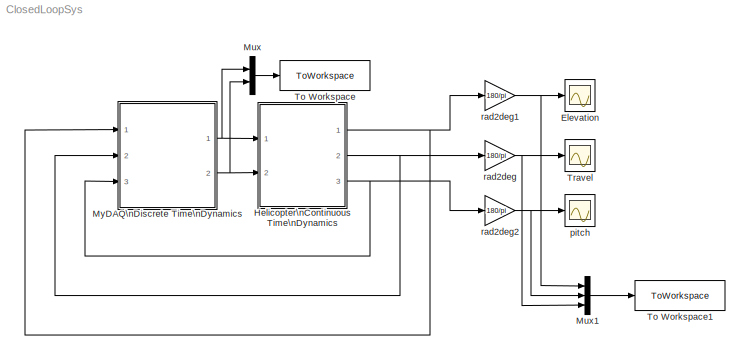
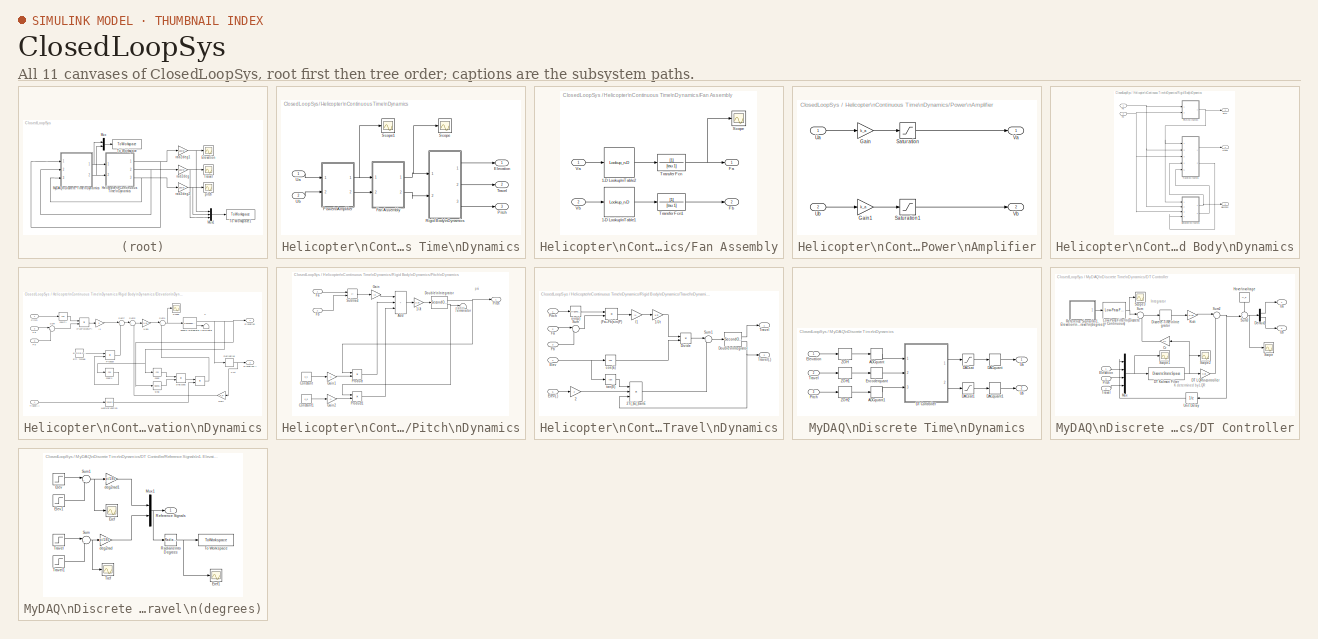
[diagram: thumbnail index - all 11 canvases of the model, root first then tree order]
MODEL ClosedLoopSys
KIND model
BLOCK [Scope] Elevation
  Floating = off
  NumInputPorts = 1
  Ports = [1]
  SID = 796
  ScopeSpecificationString = Simulink.scopes.TimeScopeBlockCfg('CurrentConfiguration', extmgr.ConfigurationSet(extmgr.Configuration('Core','General UI',true),extmgr.Configuration('Core','Source UI',true),extmgr.Configuration('Sources','WiredSimulink',true,'DataLogging',true,'DataLoggingVariableName','elev','DataLoggingSaveFormat','StructureWithTime','DataLoggingDecimation','1','DataLoggingDecimateData',true),extmgr.Configurat...<+1684ch>
BLOCK [SubSystem] Helicopter\nContinuous Time\nDynamics
  Ports = [2, 3]
  RequestExecContextInheritance = off
  SID = 934
BLOCK [Outport] Helicopter\nContinuous Time\nDynamics/Elevation
  NameLocation = top
  SID = 1028
BLOCK [SubSystem] Helicopter\nContinuous Time\nDynamics/Fan Assembly
  Ports = [2, 2]
  RequestExecContextInheritance = off
  SID = 937
BLOCK [Lookup_n-D] Helicopter\nContinuous Time\nDynamics/Fan Assembly/1-D Lookup\nTable1
  BreakpointsForDimension1 = V_ab
  InputPortMap = u0
  InternalRulePriority = Speed
  NumberOfTableDimensions = 1
  Ports = [1, 1]
  RndMeth = Simplest
  SID = 940
  Table = Fss_ab
BLOCK [Lookup_n-D] Helicopter\nContinuous Time\nDynamics/Fan Assembly/1-D Lookup\nTable2
  BreakpointsForDimension1 = V_ab
  InputPortMap = u0
  InternalRulePriority = Speed
  NumberOfTableDimensions = 1
  Ports = [1, 1]
  RndMeth = Simplest
  SID = 941
  Table = Fss_ab
BLOCK [Outport] Helicopter\nContinuous Time\nDynamics/Fan Assembly/Fa
  SID = 944
BLOCK [Outport] Helicopter\nContinuous Time\nDynamics/Fan Assembly/Fb
  Port = 2
  SID = 945
BLOCK [Scope] Helicopter\nContinuous Time\nDynamics/Fan Assembly/Scope
  Floating = off
  NumInputPorts = 1
  Ports = [1]
  SID = 1038
  ScopeSpecificationString = Simulink.scopes.TimeScopeBlockCfg('CurrentConfiguration', extmgr.ConfigurationSet(extmgr.Configuration('Core','General UI',true),extmgr.Configuration('Core','Source UI',true),extmgr.Configuration('Sources','WiredSimulink',true,'DataLoggingVariableName','ScopeData1'),extmgr.Configuration('Visuals','Time Domain',true,'SerializedDisplays',{struct('MinYLimReal','-0.01466','MaxYLimReal','0.13191','YLab...<+1371ch>
BLOCK [TransferFcn] Helicopter\nContinuous Time\nDynamics/Fan Assembly/Transfer Fcn
  Denominator = [tau 1]
  SID = 942
BLOCK [TransferFcn] Helicopter\nContinuous Time\nDynamics/Fan Assembly/Transfer Fcn1
  Denominator = [tau 1]
  SID = 943
BLOCK [Inport] Helicopter\nContinuous Time\nDynamics/Fan Assembly/Va
  SID = 938
BLOCK [Inport] Helicopter\nContinuous Time\nDynamics/Fan Assembly/Vb
  Port = 2
  SID = 939
BLOCK [Outport] Helicopter\nContinuous Time\nDynamics/Pitch
  Port = 3
  SID = 1030
BLOCK [SubSystem] Helicopter\nContinuous Time\nDynamics/Power\nAmplifier
  Ports = [2, 2]
  RequestExecContextInheritance = off
  SID = 946
BLOCK [Gain] Helicopter\nContinuous Time\nDynamics/Power\nAmplifier/Gain
  Gain = k_a
  SID = 949
BLOCK [Gain] Helicopter\nContinuous Time\nDynamics/Power\nAmplifier/Gain1
  Gain = k_a
  SID = 950
BLOCK [Saturate] Helicopter\nContinuous Time\nDynamics/Power\nAmplifier/Saturation
  LowerLimit = amp_sat_l
  SID = 951
  UpperLimit = amp_sat_u
BLOCK [Saturate] Helicopter\nContinuous Time\nDynamics/Power\nAmplifier/Saturation1
  LowerLimit = amp_sat_l
  SID = 952
  UpperLimit = amp_sat_u
BLOCK [Inport] Helicopter\nContinuous Time\nDynamics/Power\nAmplifier/Ua
  SID = 947
BLOCK [Inport] Helicopter\nContinuous Time\nDynamics/Power\nAmplifier/Ub
  Port = 2
  SID = 948
BLOCK [Outport] Helicopter\nContinuous Time\nDynamics/Power\nAmplifier/Va
  SID = 953
BLOCK [Outport] Helicopter\nContinuous Time\nDynamics/Power\nAmplifier/Vb
  Port = 2
  SID = 954
BLOCK [SubSystem] Helicopter\nContinuous Time\nDynamics/Rigid Body\nDynamics
  Ports = [2, 3]
  RequestExecContextInheritance = off
  SID = 955
BLOCK [Outport] Helicopter\nContinuous Time\nDynamics/Rigid Body\nDynamics/Elevation
  NameLocation = top
  SID = 1024
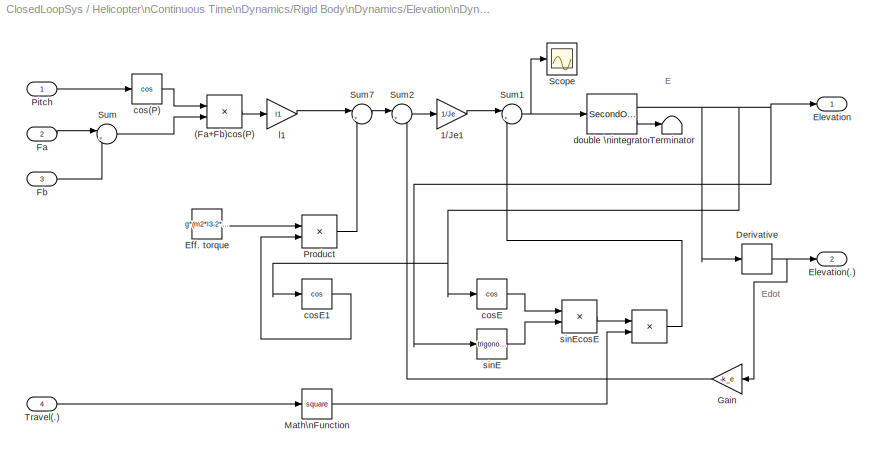
BLOCK [SubSystem] Helicopter\nContinuous Time\nDynamics/Rigid Body\nDynamics/Elevation\nDynamics
  Ports = [4, 2]
  RequestExecContextInheritance = off
  SID = 958
BLOCK [Product] Helicopter\nContinuous Time\nDynamics/Rigid Body\nDynamics/Elevation\nDynamics/ 
  InputSameDT = on
  OutDataTypeStr = Inherit: Same as first input
  Ports = [2, 1]
  RndMeth = Zero
  SID = 963
  SaturateOnIntegerOverflow = on
BLOCK [Product] Helicopter\nContinuous Time\nDynamics/Rigid Body\nDynamics/Elevation\nDynamics/(Fa+Fb)cos(P)
  InputSameDT = on
  OutDataTypeStr = Inherit: Same as first input
  Ports = [2, 1]
  RndMeth = Zero
  SID = 964
  SaturateOnIntegerOverflow = on
BLOCK [Gain] Helicopter\nContinuous Time\nDynamics/Rigid Body\nDynamics/Elevation\nDynamics/1//Je1
  Gain = 1/Je
  OutDataTypeStr = Inherit: Same as input
  ParamDataTypeStr = Inherit: Same as input
  SID = 965
  SaturateOnIntegerOverflow = on
BLOCK [Derivative] Helicopter\nContinuous Time\nDynamics/Rigid Body\nDynamics/Elevation\nDynamics/Derivative
  SID = 966
BLOCK [Constant] Helicopter\nContinuous Time\nDynamics/Rigid Body\nDynamics/Elevation\nDynamics/Eff. torque
  SID = 967
  SampleTime = 0
  Value = g*(m2*l3-2*m1*l1)
BLOCK [Outport] Helicopter\nContinuous Time\nDynamics/Rigid Body\nDynamics/Elevation\nDynamics/Elevation
  SID = 982
BLOCK [Outport] Helicopter\nContinuous Time\nDynamics/Rigid Body\nDynamics/Elevation\nDynamics/Elevation(.)
  Port = 2
  SID = 983
BLOCK [Inport] Helicopter\nContinuous Time\nDynamics/Rigid Body\nDynamics/Elevation\nDynamics/Fa
  Port = 2
  SID = 960
BLOCK [Inport] Helicopter\nContinuous Time\nDynamics/Rigid Body\nDynamics/Elevation\nDynamics/Fb
  Port = 3
  SID = 961
BLOCK [Gain] Helicopter\nContinuous Time\nDynamics/Rigid Body\nDynamics/Elevation\nDynamics/Gain
  Gain = -k_e
  NameLocation = top
  SID = 1046
BLOCK [Math] Helicopter\nContinuous Time\nDynamics/Rigid Body\nDynamics/Elevation\nDynamics/Math\nFunction
  Operator = square
  Ports = [1, 1]
  SID = 968
  SignedPower = on
BLOCK [Inport] Helicopter\nContinuous Time\nDynamics/Rigid Body\nDynamics/Elevation\nDynamics/Pitch
  SID = 959
BLOCK [Product] Helicopter\nContinuous Time\nDynamics/Rigid Body\nDynamics/Elevation\nDynamics/Product
  InputSameDT = on
  OutDataTypeStr = Inherit: Same as first input
  Ports = [2, 1]
  RndMeth = Zero
  SID = 969
  SaturateOnIntegerOverflow = on
BLOCK [Scope] Helicopter\nContinuous Time\nDynamics/Rigid Body\nDynamics/Elevation\nDynamics/Scope
  Floating = off
  NumInputPorts = 1
  Ports = [1]
  SID = 970
  ScopeSpecificationString = Simulink.scopes.TimeScopeBlockCfg('CurrentConfiguration', extmgr.ConfigurationSet(extmgr.Configuration('Core','General UI',true),extmgr.Configuration('Core','Source UI',true),extmgr.Configuration('Sources','WiredSimulink',true,'DataLoggingVariableName','ScopeData2'),extmgr.Configuration('Visuals','Time Domain',true,'SerializedDisplays',{struct('MinYLimReal','-0.8852','MaxYLimReal','-0.21737','YLab...<+1390ch>
BLOCK [Sum] Helicopter\nContinuous Time\nDynamics/Rigid Body\nDynamics/Elevation\nDynamics/Sum
  InputSameDT = on
  Inputs = |++
  OutDataTypeStr = Inherit: Same as first input
  Ports = [2, 1]
  SID = 971
  SaturateOnIntegerOverflow = on
BLOCK [Sum] Helicopter\nContinuous Time\nDynamics/Rigid Body\nDynamics/Elevation\nDynamics/Sum1
  InputSameDT = on
  Inputs = |+-
  OutDataTypeStr = Inherit: Same as first input
  Ports = [2, 1]
  SID = 972
  SaturateOnIntegerOverflow = on
BLOCK [Sum] Helicopter\nContinuous Time\nDynamics/Rigid Body\nDynamics/Elevation\nDynamics/Sum2
  InputSameDT = on
  Inputs = |++
  OutDataTypeStr = Inherit: Same as first input
  Ports = [2, 1]
  SID = 1047
  SaturateOnIntegerOverflow = on
BLOCK [Sum] Helicopter\nContinuous Time\nDynamics/Rigid Body\nDynamics/Elevation\nDynamics/Sum7
  InputSameDT = on
  Inputs = |++
  OutDataTypeStr = Inherit: Same as first input
  Ports = [2, 1]
  SID = 973
  SaturateOnIntegerOverflow = on
BLOCK [Terminator] Helicopter\nContinuous Time\nDynamics/Rigid Body\nDynamics/Elevation\nDynamics/Terminator
  SID = 974
BLOCK [Inport] Helicopter\nContinuous Time\nDynamics/Rigid Body\nDynamics/Elevation\nDynamics/Travel(.)
  Port = 4
  SID = 962
BLOCK [Trigonometry] Helicopter\nContinuous Time\nDynamics/Rigid Body\nDynamics/Elevation\nDynamics/cos(P)
  Operator = cos
  Ports = [1, 1]
  SID = 975
BLOCK [Trigonometry] Helicopter\nContinuous Time\nDynamics/Rigid Body\nDynamics/Elevation\nDynamics/cosE
  Operator = cos
  Ports = [1, 1]
  SID = 976
BLOCK [Trigonometry] Helicopter\nContinuous Time\nDynamics/Rigid Body\nDynamics/Elevation\nDynamics/cosE1
  Operator = cos
  Ports = [1, 1]
  SID = 977
BLOCK [SecondOrderIntegrator] Helicopter\nContinuous Time\nDynamics/Rigid Body\nDynamics/Elevation\nDynamics/double \nintegrator
  ICX = e_lim_l
  LimitDXDT = on
  LimitX = on
  LowerLimitDXDT = -2*pi
  LowerLimitX = e_lim_l
  Ports = [1, 2]
  SID = 978
  UpperLimitDXDT = 2*pi
  UpperLimitX = e_lim_u
BLOCK [Gain] Helicopter\nContinuous Time\nDynamics/Rigid Body\nDynamics/Elevation\nDynamics/l1
  Gain = l1
  OutDataTypeStr = Inherit: Same as input
  ParamDataTypeStr = Inherit: Same as input
  SID = 979
  SaturateOnIntegerOverflow = on
BLOCK [Trigonometry] Helicopter\nContinuous Time\nDynamics/Rigid Body\nDynamics/Elevation\nDynamics/sinE
  Ports = [1, 1]
  SID = 980
BLOCK [Product] Helicopter\nContinuous Time\nDynamics/Rigid Body\nDynamics/Elevation\nDynamics/sinEcosE
  InputSameDT = on
  OutDataTypeStr = Inherit: Same as first input
  Ports = [2, 1]
  RndMeth = Zero
  SID = 981
  SaturateOnIntegerOverflow = on
BLOCK [Inport] Helicopter\nContinuous Time\nDynamics/Rigid Body\nDynamics/Fa
  SID = 956
BLOCK [Inport] Helicopter\nContinuous Time\nDynamics/Rigid Body\nDynamics/Fb
  Port = 2
  SID = 957
BLOCK [Outport] Helicopter\nContinuous Time\nDynamics/Rigid Body\nDynamics/Pitch
  Port = 3
  SID = 1026
BLOCK [SubSystem] Helicopter\nContinuous Time\nDynamics/Rigid Body\nDynamics/Pitch\nDynamics
  Ports = [2, 1]
  RequestExecContextInheritance = off
  SID = 986
BLOCK [Gain] Helicopter\nContinuous Time\nDynamics/Rigid Body\nDynamics/Pitch\nDynamics/1//Jt
  Gain = 1/Jp
  OutDataTypeStr = Inherit: Same as input
  ParamDataTypeStr = Inherit: Same as input
  SID = 989
  SaturateOnIntegerOverflow = on
BLOCK [Sum] Helicopter\nContinuous Time\nDynamics/Rigid Body\nDynamics/Pitch\nDynamics/Add
  IconShape = rectangular
  Inputs = +++
  Ports = [3, 1]
  SID = 990
BLOCK [Constant] Helicopter\nContinuous Time\nDynamics/Rigid Body\nDynamics/Pitch\nDynamics/Constant
  SID = 991
  SampleTime = 0
  Value = k_s
BLOCK [Constant] Helicopter\nContinuous Time\nDynamics/Rigid Body\nDynamics/Pitch\nDynamics/Constant1
  SID = 992
  SampleTime = 0
  Value = k_d
BLOCK [SecondOrderIntegrator] Helicopter\nContinuous Time\nDynamics/Rigid Body\nDynamics/Pitch\nDynamics/Double\nIntegrator
  ICX = 0
  LimitX = on
  LowerLimitX = p_lim_l
  Ports = [1, 2]
  SID = 993
  UpperLimitX = p_lim_u
BLOCK [Inport] Helicopter\nContinuous Time\nDynamics/Rigid Body\nDynamics/Pitch\nDynamics/Fa
  SID = 987
BLOCK [Inport] Helicopter\nContinuous Time\nDynamics/Rigid Body\nDynamics/Pitch\nDynamics/Fb
  Port = 2
  SID = 988
BLOCK [Gain] Helicopter\nContinuous Time\nDynamics/Rigid Body\nDynamics/Pitch\nDynamics/Gain
  Gain = l2
  SID = 994
BLOCK [Gain] Helicopter\nContinuous Time\nDynamics/Rigid Body\nDynamics/Pitch\nDynamics/Gain1
  Gain = -1
  SID = 995
BLOCK [Gain] Helicopter\nContinuous Time\nDynamics/Rigid Body\nDynamics/Pitch\nDynamics/Gain2
  Gain = -1
  SID = 996
BLOCK [Outport] Helicopter\nContinuous Time\nDynamics/Rigid Body\nDynamics/Pitch\nDynamics/Pitch
  SID = 1001
BLOCK [Product] Helicopter\nContinuous Time\nDynamics/Rigid Body\nDynamics/Pitch\nDynamics/Product
  Ports = [2, 1]
  SID = 997
BLOCK [Product] Helicopter\nContinuous Time\nDynamics/Rigid Body\nDynamics/Pitch\nDynamics/Product1
  Ports = [2, 1]
  SID = 998
BLOCK [Sum] Helicopter\nContinuous Time\nDynamics/Rigid Body\nDynamics/Pitch\nDynamics/Subtract
  IconShape = rectangular
  Inputs = +-
  Ports = [2, 1]
  SID = 999
BLOCK [Terminator] Helicopter\nContinuous Time\nDynamics/Rigid Body\nDynamics/Pitch\nDynamics/Terminator
  SID = 1000
BLOCK [Outport] Helicopter\nContinuous Time\nDynamics/Rigid Body\nDynamics/Travel
  Port = 2
  SID = 1025
BLOCK [SubSystem] Helicopter\nContinuous Time\nDynamics/Rigid Body\nDynamics/Travel\nDynamics
  Ports = [5, 2]
  RequestExecContextInheritance = off
  SID = 1004
BLOCK [Product] Helicopter\nContinuous Time\nDynamics/Rigid Body\nDynamics/Travel\nDynamics/(Fa+Fb)sin(P)
  InputSameDT = on
  OutDataTypeStr = Inherit: Same as first input
  Ports = [2, 1]
  RndMeth = Zero
  SID = 1010
  SaturateOnIntegerOverflow = on
BLOCK [Gain] Helicopter\nContinuous Time\nDynamics/Rigid Body\nDynamics/Travel\nDynamics/1//Jt
  Gain = 1/Jt
  OutDataTypeStr = Inherit: Same as input
  ParamDataTypeStr = Inherit: Same as input
  SID = 1011
  SaturateOnIntegerOverflow = on
BLOCK [Gain] Helicopter\nContinuous Time\nDynamics/Rigid Body\nDynamics/Travel\nDynamics/2
  Gain = 2
  OutDataTypeStr = Inherit: Same as input
  ParamDataTypeStr = Inherit: Same as input
  SID = 1012
  SaturateOnIntegerOverflow = on
BLOCK [Product] Helicopter\nContinuous Time\nDynamics/Rigid Body\nDynamics/Travel\nDynamics/2T(.)E(.)tanE
  InputSameDT = on
  Inputs = 3
  OutDataTypeStr = Inherit: Same as first input
  Ports = [3, 1]
  RndMeth = Zero
  SID = 1013
  SaturateOnIntegerOverflow = on
BLOCK [Product] Helicopter\nContinuous Time\nDynamics/Rigid Body\nDynamics/Travel\nDynamics/Divide
  Inputs = */
  Ports = [2, 1]
  SID = 1014
BLOCK [SecondOrderIntegrator] Helicopter\nContinuous Time\nDynamics/Rigid Body\nDynamics/Travel\nDynamics/Double\nIntegrator
  LimitDXDT = on
  LowerLimitDXDT = -2
  LowerLimitX = 0
  Ports = [1, 2]
  SID = 1015
  UpperLimitDXDT = 2
  UpperLimitX = 1
BLOCK [Inport] Helicopter\nContinuous Time\nDynamics/Rigid Body\nDynamics/Travel\nDynamics/Elev
  Port = 4
  SID = 1008
BLOCK [Inport] Helicopter\nContinuous Time\nDynamics/Rigid Body\nDynamics/Travel\nDynamics/Elev(.)
  Port = 5
  SID = 1009
BLOCK [Inport] Helicopter\nContinuous Time\nDynamics/Rigid Body\nDynamics/Travel\nDynamics/Fa
  Port = 2
  SID = 1006
BLOCK [Inport] Helicopter\nContinuous Time\nDynamics/Rigid Body\nDynamics/Travel\nDynamics/Fb
  Port = 3
  SID = 1007
BLOCK [Inport] Helicopter\nContinuous Time\nDynamics/Rigid Body\nDynamics/Travel\nDynamics/Pitch
  SID = 1005
BLOCK [Sum] Helicopter\nContinuous Time\nDynamics/Rigid Body\nDynamics/Travel\nDynamics/Sum
  InputSameDT = on
  Inputs = |++
  OutDataTypeStr = Inherit: Same as first input
  Ports = [2, 1]
  SID = 1016
  SaturateOnIntegerOverflow = on
BLOCK [Sum] Helicopter\nContinuous Time\nDynamics/Rigid Body\nDynamics/Travel\nDynamics/Sum1
  InputSameDT = on
  Inputs = |-+
  OutDataTypeStr = Inherit: Same as first input
  Ports = [2, 1]
  SID = 1017
  SaturateOnIntegerOverflow = on
BLOCK [Outport] Helicopter\nContinuous Time\nDynamics/Rigid Body\nDynamics/Travel\nDynamics/Travel
  SID = 1022
BLOCK [Outport] Helicopter\nContinuous Time\nDynamics/Rigid Body\nDynamics/Travel\nDynamics/Travel(.)
  Port = 2
  SID = 1023
BLOCK [Trigonometry] Helicopter\nContinuous Time\nDynamics/Rigid Body\nDynamics/Travel\nDynamics/cos(E)
  Operator = cos
  Ports = [1, 1]
  SID = 1018
BLOCK [Gain] Helicopter\nContinuous Time\nDynamics/Rigid Body\nDynamics/Travel\nDynamics/l1
  Gain = l1
  OutDataTypeStr = Inherit: Same as input
  ParamDataTypeStr = Inherit: Same as input
  SID = 1019
  SaturateOnIntegerOverflow = on
BLOCK [Trigonometry] Helicopter\nContinuous Time\nDynamics/Rigid Body\nDynamics/Travel\nDynamics/sin(p)
  Ports = [1, 1]
  SID = 1020
BLOCK [Trigonometry] Helicopter\nContinuous Time\nDynamics/Rigid Body\nDynamics/Travel\nDynamics/tan(E)
  Operator = tan
  Ports = [1, 1]
  SID = 1021
BLOCK [Scope] Helicopter\nContinuous Time\nDynamics/Scope
  Floating = off
  NumInputPorts = 1
  Ports = [1]
  SID = 1027
  ScopeSpecificationString = Simulink.scopes.TimeScopeBlockCfg('CurrentConfiguration', extmgr.ConfigurationSet(extmgr.Configuration('Core','General UI',true),extmgr.Configuration('Core','Source UI',true),extmgr.Configuration('Sources','WiredSimulink',true,'DataLoggingVariableName','ScopeData1'),extmgr.Configuration('Visuals','Time Domain',true,'SerializedDisplays',{struct('MinYLimReal','-0.01801','MaxYLimReal','0.16213','YLab...<+1402ch>
BLOCK [Scope] Helicopter\nContinuous Time\nDynamics/Scope1
  Floating = off
  NumInputPorts = 1
  Ports = [1]
  SID = 1039
  ScopeSpecificationString = Simulink.scopes.TimeScopeBlockCfg('CurrentConfiguration', extmgr.ConfigurationSet(extmgr.Configuration('Core','General UI',true),extmgr.Configuration('Core','Source UI',true),extmgr.Configuration('Sources','WiredSimulink',true,'DataLoggingVariableName','ScopeData2'),extmgr.Configuration('Visuals','Time Domain',true,'SerializedDisplays',{struct('MinYLimReal','-1.25','MaxYLimReal','11.25','YLabelRea...<+1391ch>
BLOCK [Outport] Helicopter\nContinuous Time\nDynamics/Travel
  Port = 2
  SID = 1029
BLOCK [Inport] Helicopter\nContinuous Time\nDynamics/Ua
  SID = 935
BLOCK [Inport] Helicopter\nContinuous Time\nDynamics/Ub
  Port = 2
  SID = 936
BLOCK [Mux] Mux
  DisplayOption = bar
  Inputs = 2
  Ports = [2, 1]
  SID = 1035
BLOCK [Mux] Mux1
  DisplayOption = bar
  Inputs = 3
  Ports = [3, 1]
  SID = 1036
BLOCK [SubSystem] MyDAQ\nDiscrete Time\nDynamics
  Ports = [3, 2]
  RequestExecContextInheritance = off
  SID = 881
BLOCK [Quantizer] MyDAQ\nDiscrete Time\nDynamics/ADCquant
  QuantizationInterval = ADC_Vres
  SID = 885
  SampleTime = T
BLOCK [Quantizer] MyDAQ\nDiscrete Time\nDynamics/ADCquant1
  QuantizationInterval = ADC_Vres
  SID = 886
  SampleTime = T
BLOCK [Quantizer] MyDAQ\nDiscrete Time\nDynamics/DACquant
  QuantizationInterval = DAC_Vres
  SID = 887
  SampleTime = T
BLOCK [Quantizer] MyDAQ\nDiscrete Time\nDynamics/DACquant1
  QuantizationInterval = DAC_Vres
  SID = 888
  SampleTime = T
BLOCK [Saturate] MyDAQ\nDiscrete Time\nDynamics/DACsat
  LowerLimit = DAC_lim_l
  SID = 889
  SampleTime = T
  UpperLimit = DAC_lim_u
BLOCK [Saturate] MyDAQ\nDiscrete Time\nDynamics/DACsat1
  LowerLimit = DAC_lim_l
  SID = 890
  SampleTime = T
  UpperLimit = DAC_lim_u
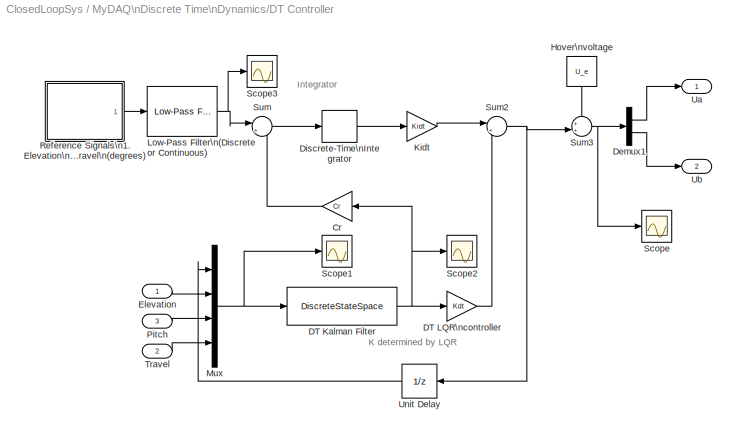
BLOCK [SubSystem] MyDAQ\nDiscrete Time\nDynamics/DT Controller
  Ports = [3, 2]
  RequestExecContextInheritance = off
  SID = 891
BLOCK [Gain] MyDAQ\nDiscrete Time\nDynamics/DT Controller/Cr
  Gain = Cr
  Multiplication = Matrix(K*u)
  SID = 895
BLOCK [DiscreteStateSpace] MyDAQ\nDiscrete Time\nDynamics/DT Controller/DT Kalman Filter
  A = kdfilt.a
  B = kdfilt.b
  C = kdfilt.c(size(C,1)+1:end,:)
  D = kdfilt.d(size(C,1)+1:end,:)
  InitialCondition = [e_lim_l; 0; 0; 0; 0; 0]
  SID = 896
  SampleTime = T
BLOCK [Gain] MyDAQ\nDiscrete Time\nDynamics/DT Controller/DT LQR\ncontroller
  Gain = Kdt
  Multiplication = Matrix(K*u)
  SID = 897
BLOCK [Demux] MyDAQ\nDiscrete Time\nDynamics/DT Controller/Demux1
  Outputs = 2
  Ports = [1, 2]
  SID = 898
BLOCK [DiscreteIntegrator] MyDAQ\nDiscrete Time\nDynamics/DT Controller/Discrete-Time\nIntegrator
  ICPrevOutput = DiscIntNeverNeededParam
  ICPrevScaledInput = DiscIntNeverNeededParam
  Ports = [1, 1]
  SID = 899
  SampleTime = T
BLOCK [Inport] MyDAQ\nDiscrete Time\nDynamics/DT Controller/Elevation
  SID = 892
BLOCK [Constant] MyDAQ\nDiscrete Time\nDynamics/DT Controller/Hover\nvoltage
  NameLocation = left
  SID = 900
  SampleTime = T
  Value = U_e
BLOCK [Gain] MyDAQ\nDiscrete Time\nDynamics/DT Controller/Kidt
  Gain = Kidt
  Multiplication = Matrix(K*u)
  SID = 901
BLOCK [Reference] MyDAQ\nDiscrete Time\nDynamics/DT Controller/Low-Pass Filter\n(Discrete or Continuous)  REF=eeGeneralControl/Low-Pass Filter\n(Discrete or Continuous)
  A = -inf
  B = inf
  K = 1
  Ports = [1, 1]
  RTWMemSecDataConstants = Inherit from model
  RTWMemSecDataInternal = Inherit from model
  RTWMemSecDataParameters = Inherit from model
  RTWMemSecFuncExecute = Inherit from model
  RTWMemSecFuncInitTerm = Inherit from model
  SID = 1049
  SourceBlock = eeGeneralControl/Low-Pass Filter\n(Discrete or Continuous)
  SourceProductBaseCode = PS
  SourceType = Low-Pass Filter (Discrete or Continuous)
  T = 1
  Ts = -1
  init_option = Inherited from block input
  x0 = 0
BLOCK [Mux] MyDAQ\nDiscrete Time\nDynamics/DT Controller/Mux
  DisplayOption = bar
  Ports = [4, 1]
  SID = 902
BLOCK [Inport] MyDAQ\nDiscrete Time\nDynamics/DT Controller/Pitch
  Port = 3
  SID = 894
BLOCK [SubSystem] MyDAQ\nDiscrete Time\nDynamics/DT Controller/Reference Signals\n1. Elevation\n2. Travel\n(degrees)
  Ports = [0, 1]
  RequestExecContextInheritance = off
  SID = 903
BLOCK [Step] MyDAQ\nDiscrete Time\nDynamics/DT Controller/Reference Signals\n1. Elevation\n2. Travel\n(degrees)/Elev
  After = 0
  SID = 904
  SampleTime = T
  Time = 0
BLOCK [Step] MyDAQ\nDiscrete Time\nDynamics/DT Controller/Reference Signals\n1. Elevation\n2. Travel\n(degrees)/Elev1
  After = 10
  SID = 905
  SampleTime = T
  Time = 30
BLOCK [Scope] MyDAQ\nDiscrete Time\nDynamics/DT Controller/Reference Signals\n1. Elevation\n2. Travel\n(degrees)/Eref
  Floating = off
  NumInputPorts = 1
  Ports = [1]
  SID = 906
  ScopeSpecificationString = Simulink.scopes.TimeScopeBlockCfg('CurrentConfiguration', extmgr.ConfigurationSet(extmgr.Configuration('Core','General UI',true),extmgr.Configuration('Core','Source UI',true),extmgr.Configuration('Sources','WiredSimulink',true,'DataLogging',true,'DataLoggingVariableName','eref','DataLoggingSaveFormat','StructureWithTime','DataLoggingDecimation','1','DataLoggingDecimateData',true),extmgr.Configurat...<+1676ch>
BLOCK [Scope] MyDAQ\nDiscrete Time\nDynamics/DT Controller/Reference Signals\n1. Elevation\n2. Travel\n(degrees)/Eref1
  Floating = off
  NumInputPorts = 1
  Ports = [1]
  SID = 1033
  ScopeSpecificationString = Simulink.scopes.TimeScopeBlockCfg('CurrentConfiguration', extmgr.ConfigurationSet(extmgr.Configuration('Core','General UI',true),extmgr.Configuration('Core','Source UI',true),extmgr.Configuration('Sources','WiredSimulink',true,'DataLogging',true,'DataLoggingVariableName','eref1','DataLoggingSaveFormat','StructureWithTime','DataLoggingDecimation','1','DataLoggingDecimateData',true),extmgr.Configura...<+1716ch>
BLOCK [Mux] MyDAQ\nDiscrete Time\nDynamics/DT Controller/Reference Signals\n1. Elevation\n2. Travel\n(degrees)/Mux1
  DisplayOption = bar
  Inputs = 2
  Ports = [2, 1]
  SID = 907
BLOCK [Reference] MyDAQ\nDiscrete Time\nDynamics/DT Controller/Reference Signals\n1. Elevation\n2. Travel\n(degrees)/Radians\nto Degrees  REF=simulink_extras/Transformations/Radians\nto Degrees
  Ports = [1, 1]
  RTWMemSecDataConstants = Inherit from model
  RTWMemSecDataInternal = Inherit from model
  RTWMemSecDataParameters = Inherit from model
  RTWMemSecFuncExecute = Inherit from model
  RTWMemSecFuncInitTerm = Inherit from model
  SID = 1032
  SourceBlock = simulink_extras/Transformations/Radians\nto Degrees
  SourceProductBaseCode = SL
  SourceType = RadiansToDegrees
BLOCK [Outport] MyDAQ\nDiscrete Time\nDynamics/DT Controller/Reference Signals\n1. Elevation\n2. Travel\n(degrees)/Reference Signals
  NameLocation = top
  SID = 915
BLOCK [Sum] MyDAQ\nDiscrete Time\nDynamics/DT Controller/Reference Signals\n1. Elevation\n2. Travel\n(degrees)/Sum
  InputSameDT = on
  Inputs = |++
  OutDataTypeStr = Inherit: Same as first input
  Ports = [2, 1]
  SID = 908
  SaturateOnIntegerOverflow = on
BLOCK [Sum] MyDAQ\nDiscrete Time\nDynamics/DT Controller/Reference Signals\n1. Elevation\n2. Travel\n(degrees)/Sum1
  InputSameDT = on
  Inputs = |++
  OutDataTypeStr = Inherit: Same as first input
  Ports = [2, 1]
  SID = 909
  SampleTime = T
  SaturateOnIntegerOverflow = on
BLOCK [ToWorkspace] MyDAQ\nDiscrete Time\nDynamics/DT Controller/Reference Signals\n1. Elevation\n2. Travel\n(degrees)/To Workspace
  FixptAsFi = on
  MaxDataPoints = inf
  Ports = [1]
  SID = 1031
  SampleTime = -1
  VariableName = refSignals
BLOCK [Step] MyDAQ\nDiscrete Time\nDynamics/DT Controller/Reference Signals\n1. Elevation\n2. Travel\n(degrees)/Travel
  After = 180
  SID = 910
  SampleTime = T
  Time = 10
BLOCK [Step] MyDAQ\nDiscrete Time\nDynamics/DT Controller/Reference Signals\n1. Elevation\n2. Travel\n(degrees)/Travel1
  After = -180
  SID = 911
  SampleTime = T
  Time = 40
BLOCK [Scope] MyDAQ\nDiscrete Time\nDynamics/DT Controller/Reference Signals\n1. Elevation\n2. Travel\n(degrees)/Tref
  Floating = off
  NumInputPorts = 1
  Ports = [1]
  SID = 912
  ScopeSpecificationString = C++SS(StrPVP('Location','[407, 425, 739, 684]'),StrPVP('Open','off'),StrPVP('ZoomMode','xonly'),MxPVP('AxesTitles',54,'struct(''axes1'',''%<SignalLabel>'')'),StrPVP('ShowLegends','off'),StrPVP('TimeRange','60'),StrPVP('YMin','0'),StrPVP('YMax','140'),StrPVP('SaveToWorkspace','on'),StrPVP('SaveName','tref'),StrPVP('DataFormat','StructureWithTime'),StrPVP('LimitDataPoints','off'),StrPVP('BlockParamS...<+106ch>
BLOCK [Gain] MyDAQ\nDiscrete Time\nDynamics/DT Controller/Reference Signals\n1. Elevation\n2. Travel\n(degrees)/deg2rad
  Gain = pi/180
  OutDataTypeStr = Inherit: Same as input
  ParamDataTypeStr = Inherit: Same as input
  SID = 913
  SaturateOnIntegerOverflow = on
BLOCK [Gain] MyDAQ\nDiscrete Time\nDynamics/DT Controller/Reference Signals\n1. Elevation\n2. Travel\n(degrees)/deg2rad1
  Gain = pi/180
  OutDataTypeStr = Inherit: Same as input
  ParamDataTypeStr = Inherit: Same as input
  SID = 914
  SaturateOnIntegerOverflow = on
BLOCK [Scope] MyDAQ\nDiscrete Time\nDynamics/DT Controller/Scope
  Floating = off
  NumInputPorts = 1
  Ports = [1]
  SID = 1040
  ScopeSpecificationString = Simulink.scopes.TimeScopeBlockCfg('CurrentConfiguration', extmgr.ConfigurationSet(extmgr.Configuration('Core','General UI',true),extmgr.Configuration('Core','Source UI',true),extmgr.Configuration('Sources','WiredSimulink',true,'DataLoggingVariableName','ScopeData3'),extmgr.Configuration('Visuals','Time Domain',true,'SerializedDisplays',{struct('MinYLimReal','-13643602662285996746479503409152.00000...<+1620ch>
BLOCK [Scope] MyDAQ\nDiscrete Time\nDynamics/DT Controller/Scope1
  Floating = off
  NumInputPorts = 1
  Ports = [1]
  SID = 1041
  ScopeSpecificationString = Simulink.scopes.TimeScopeBlockCfg('CurrentConfiguration', extmgr.ConfigurationSet(extmgr.Configuration('Core','General UI',true),extmgr.Configuration('Core','Source UI',true),extmgr.Configuration('Sources','WiredSimulink',true,'DataLoggingVariableName','ScopeData4'),extmgr.Configuration('Visuals','Time Domain',true,'SerializedDisplays',{struct('MinYLimReal','-6209047466272959951386020369399808.000...<+1712ch>
BLOCK [Scope] MyDAQ\nDiscrete Time\nDynamics/DT Controller/Scope2
  Floating = off
  NumInputPorts = 1
  Ports = [1]
  SID = 1042
  ScopeSpecificationString = Simulink.scopes.TimeScopeBlockCfg('CurrentConfiguration', extmgr.ConfigurationSet(extmgr.Configuration('Core','General UI',true),extmgr.Configuration('Core','Source UI',true),extmgr.Configuration('Sources','WiredSimulink',true,'DataLoggingVariableName','ScopeData5'),extmgr.Configuration('Visuals','Time Domain',true,'SerializedDisplays',{struct('MinYLimReal','-1.38562','MaxYLimReal','3.74281','YLab...<+1509ch>
BLOCK [Scope] MyDAQ\nDiscrete Time\nDynamics/DT Controller/Scope3
  Floating = off
  NumInputPorts = 1
  Ports = [1]
  SID = 1043
  ScopeSpecificationString = Simulink.scopes.TimeScopeBlockCfg('CurrentConfiguration', extmgr.ConfigurationSet(extmgr.Configuration('Core','General UI',true),extmgr.Configuration('Core','Source UI',true),extmgr.Configuration('Sources','WiredSimulink',true,'DataLoggingVariableName','ScopeData1'),extmgr.Configuration('Visuals','Time Domain',true,'SerializedDisplays',{struct('MinYLimReal','-1935213923368754383432014343700480.000...<+1776ch>
BLOCK [Sum] MyDAQ\nDiscrete Time\nDynamics/DT Controller/Sum
  Inputs = |+-
  Ports = [2, 1]
  SID = 916
  SampleTime = T
BLOCK [Sum] MyDAQ\nDiscrete Time\nDynamics/DT Controller/Sum2
  Inputs = |+-
  Ports = [2, 1]
  SID = 917
  SampleTime = T
BLOCK [Sum] MyDAQ\nDiscrete Time\nDynamics/DT Controller/Sum3
  Inputs = ++|
  Ports = [2, 1]
  SID = 918
  SampleTime = T
BLOCK [Inport] MyDAQ\nDiscrete Time\nDynamics/DT Controller/Travel
  Port = 2
  SID = 893
BLOCK [Outport] MyDAQ\nDiscrete Time\nDynamics/DT Controller/Ua
  SID = 920
BLOCK [Outport] MyDAQ\nDiscrete Time\nDynamics/DT Controller/Ub
  Port = 2
  SID = 921
BLOCK [UnitDelay] MyDAQ\nDiscrete Time\nDynamics/DT Controller/Unit Delay
  HasFrameUpgradeWarning = on
  SID = 919
  SampleTime = T
BLOCK [Inport] MyDAQ\nDiscrete Time\nDynamics/Elevation
  SID = 882
BLOCK [Quantizer] MyDAQ\nDiscrete Time\nDynamics/Encoderquant
  QuantizationInterval = Encoder_res
  SID = 922
  SampleTime = T
BLOCK [Inport] MyDAQ\nDiscrete Time\nDynamics/Pitch
  Port = 3
  SID = 884
BLOCK [Inport] MyDAQ\nDiscrete Time\nDynamics/Travel
  Port = 2
  SID = 883
BLOCK [Outport] MyDAQ\nDiscrete Time\nDynamics/Ua
  SID = 926
BLOCK [Outport] MyDAQ\nDiscrete Time\nDynamics/Ub
  Port = 2
  SID = 927
BLOCK [ZeroOrderHold] MyDAQ\nDiscrete Time\nDynamics/ZOH
  SID = 923
  SampleTime = T
BLOCK [ZeroOrderHold] MyDAQ\nDiscrete Time\nDynamics/ZOH1
  SID = 924
  SampleTime = T
BLOCK [ZeroOrderHold] MyDAQ\nDiscrete Time\nDynamics/ZOH2
  SID = 925
  SampleTime = T
BLOCK [ToWorkspace] To Workspace
  FixptAsFi = on
  MaxDataPoints = inf
  Ports = [1]
  SID = 1034
  SampleTime = -1
  VariableName = controlSignals
BLOCK [ToWorkspace] To Workspace1
  FixptAsFi = on
  MaxDataPoints = inf
  Ports = [1]
  SID = 1037
  SampleTime = -1
  VariableName = outputs
BLOCK [Scope] Travel
  Floating = off
  NumInputPorts = 1
  Ports = [1]
  SID = 928
  ScopeSpecificationString = Simulink.scopes.TimeScopeBlockCfg('CurrentConfiguration', extmgr.ConfigurationSet(extmgr.Configuration('Core','General UI',true),extmgr.Configuration('Core','Source UI',true),extmgr.Configuration('Sources','WiredSimulink',true,'DataLogging',true,'DataLoggingVariableName','trav','DataLoggingSaveFormat','StructureWithTime','DataLoggingDecimation','1','DataLoggingDecimateData',true),extmgr.Configurat...<+1680ch>
BLOCK [Scope] pitch
  Floating = off
  NumInputPorts = 1
  Ports = [1]
  SID = 929
  ScopeSpecificationString = Simulink.scopes.TimeScopeBlockCfg('CurrentConfiguration', extmgr.ConfigurationSet(extmgr.Configuration('Core','General UI',true),extmgr.Configuration('Core','Source UI',true),extmgr.Configuration('Sources','WiredSimulink',true,'DataLogging',true,'DataLoggingVariableName','pitch','DataLoggingSaveFormat','StructureWithTime','DataLoggingDecimation','1','DataLoggingDecimateData',true),extmgr.Configura...<+1686ch>
BLOCK [Gain] rad2deg
  Gain = 180/pi
  OutDataTypeStr = Inherit: Same as input
  ParamDataTypeStr = Inherit: Same as input
  SID = 930
  SaturateOnIntegerOverflow = on
BLOCK [Gain] rad2deg1
  Gain = 180/pi
  OutDataTypeStr = Inherit: Same as input
  ParamDataTypeStr = Inherit: Same as input
  SID = 931
  SaturateOnIntegerOverflow = on
BLOCK [Gain] rad2deg2
  Gain = 180/pi
  OutDataTypeStr = Inherit: Same as input
  ParamDataTypeStr = Inherit: Same as input
  SID = 932
  SaturateOnIntegerOverflow = on
ANNOTATION Helicopter\nContinuous Time\nDynamics/Rigid Body\nDynamics/Elevation\nDynamics: E
ANNOTATION Helicopter\nContinuous Time\nDynamics/Rigid Body\nDynamics/Elevation\nDynamics: Edot
ANNOTATION Helicopter\nContinuous Time\nDynamics/Rigid Body\nDynamics/Pitch\nDynamics: psi
ANNOTATION Helicopter\nContinuous Time\nDynamics/Rigid Body\nDynamics/Pitch\nDynamics: psidot
ANNOTATION MyDAQ\nDiscrete Time\nDynamics/DT Controller: Integrator
ANNOTATION MyDAQ\nDiscrete Time\nDynamics/DT Controller: K determined by LQR
LINE Helicopter\nContinuous Time\nDynamics/Fan Assembly/1-D Lookup\nTable1:1 -> Helicopter\nContinuous Time\nDynamics/Fan Assembly/Transfer Fcn1:1
LINE Helicopter\nContinuous Time\nDynamics/Fan Assembly/1-D Lookup\nTable2:1 -> Helicopter\nContinuous Time\nDynamics/Fan Assembly/Transfer Fcn:1
LINE Helicopter\nContinuous Time\nDynamics/Fan Assembly/Transfer Fcn1:1 -> Helicopter\nContinuous Time\nDynamics/Fan Assembly/Fb:1
NET Helicopter\nContinuous Time\nDynamics/Fan Assembly/Transfer Fcn:1 -> Helicopter\nContinuous Time\nDynamics/Fan Assembly/Fa:1, Helicopter\nContinuous Time\nDynamics/Fan Assembly/Scope:1
LINE Helicopter\nContinuous Time\nDynamics/Fan Assembly/Va:1 -> Helicopter\nContinuous Time\nDynamics/Fan Assembly/1-D Lookup\nTable2:1
LINE Helicopter\nContinuous Time\nDynamics/Fan Assembly/Vb:1 -> Helicopter\nContinuous Time\nDynamics/Fan Assembly/1-D Lookup\nTable1:1
NET Helicopter\nContinuous Time\nDynamics/Fan Assembly:1 -> Helicopter\nContinuous Time\nDynamics/Rigid Body\nDynamics:1, Helicopter\nContinuous Time\nDynamics/Scope:1
LINE Helicopter\nContinuous Time\nDynamics/Fan Assembly:2 -> Helicopter\nContinuous Time\nDynamics/Rigid Body\nDynamics:2
LINE Helicopter\nContinuous Time\nDynamics/Power\nAmplifier/Gain1:1 -> Helicopter\nContinuous Time\nDynamics/Power\nAmplifier/Saturation1:1
LINE Helicopter\nContinuous Time\nDynamics/Power\nAmplifier/Gain:1 -> Helicopter\nContinuous Time\nDynamics/Power\nAmplifier/Saturation:1
LINE Helicopter\nContinuous Time\nDynamics/Power\nAmplifier/Saturation1:1 -> Helicopter\nContinuous Time\nDynamics/Power\nAmplifier/Vb:1
LINE Helicopter\nContinuous Time\nDynamics/Power\nAmplifier/Saturation:1 -> Helicopter\nContinuous Time\nDynamics/Power\nAmplifier/Va:1
LINE Helicopter\nContinuous Time\nDynamics/Power\nAmplifier/Ua:1 -> Helicopter\nContinuous Time\nDynamics/Power\nAmplifier/Gain:1
LINE Helicopter\nContinuous Time\nDynamics/Power\nAmplifier/Ub:1 -> Helicopter\nContinuous Time\nDynamics/Power\nAmplifier/Gain1:1
NET Helicopter\nContinuous Time\nDynamics/Power\nAmplifier:1 -> Helicopter\nContinuous Time\nDynamics/Fan Assembly:1, Helicopter\nContinuous Time\nDynamics/Scope1:1
LINE Helicopter\nContinuous Time\nDynamics/Power\nAmplifier:2 -> Helicopter\nContinuous Time\nDynamics/Fan Assembly:2
LINE Helicopter\nContinuous Time\nDynamics/Rigid Body\nDynamics/Elevation\nDynamics/ :1 -> Helicopter\nContinuous Time\nDynamics/Rigid Body\nDynamics/Elevation\nDynamics/Sum1:2
LINE Helicopter\nContinuous Time\nDynamics/Rigid Body\nDynamics/Elevation\nDynamics/(Fa+Fb)cos(P):1 -> Helicopter\nContinuous Time\nDynamics/Rigid Body\nDynamics/Elevation\nDynamics/l1:1
LINE Helicopter\nContinuous Time\nDynamics/Rigid Body\nDynamics/Elevation\nDynamics/1//Je1:1 -> Helicopter\nContinuous Time\nDynamics/Rigid Body\nDynamics/Elevation\nDynamics/Sum1:1
NET Helicopter\nContinuous Time\nDynamics/Rigid Body\nDynamics/Elevation\nDynamics/Derivative:1 -> Helicopter\nContinuous Time\nDynamics/Rigid Body\nDynamics/Elevation\nDynamics/Elevation(.):1, Helicopter\nContinuous Time\nDynamics/Rigid Body\nDynamics/Elevation\nDynamics/Gain:1
LINE Helicopter\nContinuous Time\nDynamics/Rigid Body\nDynamics/Elevation\nDynamics/Eff. torque:1 -> Helicopter\nContinuous Time\nDynamics/Rigid Body\nDynamics/Elevation\nDynamics/Product:1
LINE Helicopter\nContinuous Time\nDynamics/Rigid Body\nDynamics/Elevation\nDynamics/Fa:1 -> Helicopter\nContinuous Time\nDynamics/Rigid Body\nDynamics/Elevation\nDynamics/Sum:1
LINE Helicopter\nContinuous Time\nDynamics/Rigid Body\nDynamics/Elevation\nDynamics/Fb:1 -> Helicopter\nContinuous Time\nDynamics/Rigid Body\nDynamics/Elevation\nDynamics/Sum:2
LINE Helicopter\nContinuous Time\nDynamics/Rigid Body\nDynamics/Elevation\nDynamics/Gain:1 -> Helicopter\nContinuous Time\nDynamics/Rigid Body\nDynamics/Elevation\nDynamics/Sum2:2
LINE Helicopter\nContinuous Time\nDynamics/Rigid Body\nDynamics/Elevation\nDynamics/Math\nFunction:1 -> Helicopter\nContinuous Time\nDynamics/Rigid Body\nDynamics/Elevation\nDynamics/ :2
LINE Helicopter\nContinuous Time\nDynamics/Rigid Body\nDynamics/Elevation\nDynamics/Pitch:1 -> Helicopter\nContinuous Time\nDynamics/Rigid Body\nDynamics/Elevation\nDynamics/cos(P):1
LINE Helicopter\nContinuous Time\nDynamics/Rigid Body\nDynamics/Elevation\nDynamics/Product:1 -> Helicopter\nContinuous Time\nDynamics/Rigid Body\nDynamics/Elevation\nDynamics/Sum7:2
NET Helicopter\nContinuous Time\nDynamics/Rigid Body\nDynamics/Elevation\nDynamics/Sum1:1 -> Helicopter\nContinuous Time\nDynamics/Rigid Body\nDynamics/Elevation\nDynamics/Scope:1, Helicopter\nContinuous Time\nDynamics/Rigid Body\nDynamics/Elevation\nDynamics/double \nintegrator:1
LINE Helicopter\nContinuous Time\nDynamics/Rigid Body\nDynamics/Elevation\nDynamics/Sum2:1 -> Helicopter\nContinuous Time\nDynamics/Rigid Body\nDynamics/Elevation\nDynamics/1//Je1:1
LINE Helicopter\nContinuous Time\nDynamics/Rigid Body\nDynamics/Elevation\nDynamics/Sum7:1 -> Helicopter\nContinuous Time\nDynamics/Rigid Body\nDynamics/Elevation\nDynamics/Sum2:1
LINE Helicopter\nContinuous Time\nDynamics/Rigid Body\nDynamics/Elevation\nDynamics/Sum:1 -> Helicopter\nContinuous Time\nDynamics/Rigid Body\nDynamics/Elevation\nDynamics/(Fa+Fb)cos(P):2
LINE Helicopter\nContinuous Time\nDynamics/Rigid Body\nDynamics/Elevation\nDynamics/Travel(.):1 -> Helicopter\nContinuous Time\nDynamics/Rigid Body\nDynamics/Elevation\nDynamics/Math\nFunction:1
LINE Helicopter\nContinuous Time\nDynamics/Rigid Body\nDynamics/Elevation\nDynamics/cos(P):1 -> Helicopter\nContinuous Time\nDynamics/Rigid Body\nDynamics/Elevation\nDynamics/(Fa+Fb)cos(P):1
LINE Helicopter\nContinuous Time\nDynamics/Rigid Body\nDynamics/Elevation\nDynamics/cosE1:1 -> Helicopter\nContinuous Time\nDynamics/Rigid Body\nDynamics/Elevation\nDynamics/Product:2
LINE Helicopter\nContinuous Time\nDynamics/Rigid Body\nDynamics/Elevation\nDynamics/cosE:1 -> Helicopter\nContinuous Time\nDynamics/Rigid Body\nDynamics/Elevation\nDynamics/sinEcosE:1
NET Helicopter\nContinuous Time\nDynamics/Rigid Body\nDynamics/Elevation\nDynamics/double \nintegrator:1 -> Helicopter\nContinuous Time\nDynamics/Rigid Body\nDynamics/Elevation\nDynamics/Derivative:1, Helicopter\nContinuous Time\nDynamics/Rigid Body\nDynamics/Elevation\nDynamics/Elevation:1, Helicopter\nContinuous Time\nDynamics/Rigid Body\nDynamics/Elevation\nDynamics/cosE1:1, Helicopter\nContinuous Time\nDynamics/Rigid Body\nDynamics/Elevation\nDynamics/cosE:1, Helicopter\nContinuous Time\nDynamics/Rigid Body\nDynamics/Elevation\nDynamics/sinE:1
LINE Helicopter\nContinuous Time\nDynamics/Rigid Body\nDynamics/Elevation\nDynamics/double \nintegrator:2 -> Helicopter\nContinuous Time\nDynamics/Rigid Body\nDynamics/Elevation\nDynamics/Terminator:1
LINE Helicopter\nContinuous Time\nDynamics/Rigid Body\nDynamics/Elevation\nDynamics/l1:1 -> Helicopter\nContinuous Time\nDynamics/Rigid Body\nDynamics/Elevation\nDynamics/Sum7:1
LINE Helicopter\nContinuous Time\nDynamics/Rigid Body\nDynamics/Elevation\nDynamics/sinE:1 -> Helicopter\nContinuous Time\nDynamics/Rigid Body\nDynamics/Elevation\nDynamics/sinEcosE:2
LINE Helicopter\nContinuous Time\nDynamics/Rigid Body\nDynamics/Elevation\nDynamics/sinEcosE:1 -> Helicopter\nContinuous Time\nDynamics/Rigid Body\nDynamics/Elevation\nDynamics/ :1
NET Helicopter\nContinuous Time\nDynamics/Rigid Body\nDynamics/Elevation\nDynamics:1 -> Helicopter\nContinuous Time\nDynamics/Rigid Body\nDynamics/Elevation:1, Helicopter\nContinuous Time\nDynamics/Rigid Body\nDynamics/Travel\nDynamics:4
LINE Helicopter\nContinuous Time\nDynamics/Rigid Body\nDynamics/Elevation\nDynamics:2 -> Helicopter\nContinuous Time\nDynamics/Rigid Body\nDynamics/Travel\nDynamics:5
NET Helicopter\nContinuous Time\nDynamics/Rigid Body\nDynamics/Fa:1 -> Helicopter\nContinuous Time\nDynamics/Rigid Body\nDynamics/Elevation\nDynamics:2, Helicopter\nContinuous Time\nDynamics/Rigid Body\nDynamics/Pitch\nDynamics:1, Helicopter\nContinuous Time\nDynamics/Rigid Body\nDynamics/Travel\nDynamics:2
NET Helicopter\nContinuous Time\nDynamics/Rigid Body\nDynamics/Fb:1 -> Helicopter\nContinuous Time\nDynamics/Rigid Body\nDynamics/Elevation\nDynamics:3, Helicopter\nContinuous Time\nDynamics/Rigid Body\nDynamics/Pitch\nDynamics:2, Helicopter\nContinuous Time\nDynamics/Rigid Body\nDynamics/Travel\nDynamics:3
LINE Helicopter\nContinuous Time\nDynamics/Rigid Body\nDynamics/Pitch\nDynamics/1//Jt:1 -> Helicopter\nContinuous Time\nDynamics/Rigid Body\nDynamics/Pitch\nDynamics/Double\nIntegrator:1
LINE Helicopter\nContinuous Time\nDynamics/Rigid Body\nDynamics/Pitch\nDynamics/Add:1 -> Helicopter\nContinuous Time\nDynamics/Rigid Body\nDynamics/Pitch\nDynamics/1//Jt:1
LINE Helicopter\nContinuous Time\nDynamics/Rigid Body\nDynamics/Pitch\nDynamics/Constant1:1 -> Helicopter\nContinuous Time\nDynamics/Rigid Body\nDynamics/Pitch\nDynamics/Gain2:1
LINE Helicopter\nContinuous Time\nDynamics/Rigid Body\nDynamics/Pitch\nDynamics/Constant:1 -> Helicopter\nContinuous Time\nDynamics/Rigid Body\nDynamics/Pitch\nDynamics/Gain1:1
NET Helicopter\nContinuous Time\nDynamics/Rigid Body\nDynamics/Pitch\nDynamics/Double\nIntegrator:1 -> Helicopter\nContinuous Time\nDynamics/Rigid Body\nDynamics/Pitch\nDynamics/Pitch:1, Helicopter\nContinuous Time\nDynamics/Rigid Body\nDynamics/Pitch\nDynamics/Product:1
NET Helicopter\nContinuous Time\nDynamics/Rigid Body\nDynamics/Pitch\nDynamics/Double\nIntegrator:2 -> Helicopter\nContinuous Time\nDynamics/Rigid Body\nDynamics/Pitch\nDynamics/Product1:1, Helicopter\nContinuous Time\nDynamics/Rigid Body\nDynamics/Pitch\nDynamics/Terminator:1
LINE Helicopter\nContinuous Time\nDynamics/Rigid Body\nDynamics/Pitch\nDynamics/Fa:1 -> Helicopter\nContinuous Time\nDynamics/Rigid Body\nDynamics/Pitch\nDynamics/Subtract:1
LINE Helicopter\nContinuous Time\nDynamics/Rigid Body\nDynamics/Pitch\nDynamics/Fb:1 -> Helicopter\nContinuous Time\nDynamics/Rigid Body\nDynamics/Pitch\nDynamics/Subtract:2
LINE Helicopter\nContinuous Time\nDynamics/Rigid Body\nDynamics/Pitch\nDynamics/Gain1:1 -> Helicopter\nContinuous Time\nDynamics/Rigid Body\nDynamics/Pitch\nDynamics/Product:2
LINE Helicopter\nContinuous Time\nDynamics/Rigid Body\nDynamics/Pitch\nDynamics/Gain2:1 -> Helicopter\nContinuous Time\nDynamics/Rigid Body\nDynamics/Pitch\nDynamics/Product1:2
LINE Helicopter\nContinuous Time\nDynamics/Rigid Body\nDynamics/Pitch\nDynamics/Gain:1 -> Helicopter\nContinuous Time\nDynamics/Rigid Body\nDynamics/Pitch\nDynamics/Add:1
LINE Helicopter\nContinuous Time\nDynamics/Rigid Body\nDynamics/Pitch\nDynamics/Product1:1 -> Helicopter\nContinuous Time\nDynamics/Rigid Body\nDynamics/Pitch\nDynamics/Add:3
LINE Helicopter\nContinuous Time\nDynamics/Rigid Body\nDynamics/Pitch\nDynamics/Product:1 -> Helicopter\nContinuous Time\nDynamics/Rigid Body\nDynamics/Pitch\nDynamics/Add:2
LINE Helicopter\nContinuous Time\nDynamics/Rigid Body\nDynamics/Pitch\nDynamics/Subtract:1 -> Helicopter\nContinuous Time\nDynamics/Rigid Body\nDynamics/Pitch\nDynamics/Gain:1
NET Helicopter\nContinuous Time\nDynamics/Rigid Body\nDynamics/Pitch\nDynamics:1 -> Helicopter\nContinuous Time\nDynamics/Rigid Body\nDynamics/Elevation\nDynamics:1, Helicopter\nContinuous Time\nDynamics/Rigid Body\nDynamics/Pitch:1, Helicopter\nContinuous Time\nDynamics/Rigid Body\nDynamics/Travel\nDynamics:1
LINE Helicopter\nContinuous Time\nDynamics/Rigid Body\nDynamics/Travel\nDynamics/(Fa+Fb)sin(P):1 -> Helicopter\nContinuous Time\nDynamics/Rigid Body\nDynamics/Travel\nDynamics/l1:1
LINE Helicopter\nContinuous Time\nDynamics/Rigid Body\nDynamics/Travel\nDynamics/1//Jt:1 -> Helicopter\nContinuous Time\nDynamics/Rigid Body\nDynamics/Travel\nDynamics/Divide:1
LINE Helicopter\nContinuous Time\nDynamics/Rigid Body\nDynamics/Travel\nDynamics/2:1 -> Helicopter\nContinuous Time\nDynamics/Rigid Body\nDynamics/Travel\nDynamics/2T(.)E(.)tanE:2
LINE Helicopter\nContinuous Time\nDynamics/Rigid Body\nDynamics/Travel\nDynamics/2T(.)E(.)tanE:1 -> Helicopter\nContinuous Time\nDynamics/Rigid Body\nDynamics/Travel\nDynamics/Sum1:2
LINE Helicopter\nContinuous Time\nDynamics/Rigid Body\nDynamics/Travel\nDynamics/Divide:1 -> Helicopter\nContinuous Time\nDynamics/Rigid Body\nDynamics/Travel\nDynamics/Sum1:1
LINE Helicopter\nContinuous Time\nDynamics/Rigid Body\nDynamics/Travel\nDynamics/Double\nIntegrator:1 -> Helicopter\nContinuous Time\nDynamics/Rigid Body\nDynamics/Travel\nDynamics/Travel:1
NET Helicopter\nContinuous Time\nDynamics/Rigid Body\nDynamics/Travel\nDynamics/Double\nIntegrator:2 -> Helicopter\nContinuous Time\nDynamics/Rigid Body\nDynamics/Travel\nDynamics/2T(.)E(.)tanE:3, Helicopter\nContinuous Time\nDynamics/Rigid Body\nDynamics/Travel\nDynamics/Travel(.):1
LINE Helicopter\nContinuous Time\nDynamics/Rigid Body\nDynamics/Travel\nDynamics/Elev(.):1 -> Helicopter\nContinuous Time\nDynamics/Rigid Body\nDynamics/Travel\nDynamics/2:1
NET Helicopter\nContinuous Time\nDynamics/Rigid Body\nDynamics/Travel\nDynamics/Elev:1 -> Helicopter\nContinuous Time\nDynamics/Rigid Body\nDynamics/Travel\nDynamics/cos(E):1, Helicopter\nContinuous Time\nDynamics/Rigid Body\nDynamics/Travel\nDynamics/tan(E):1
LINE Helicopter\nContinuous Time\nDynamics/Rigid Body\nDynamics/Travel\nDynamics/Fa:1 -> Helicopter\nContinuous Time\nDynamics/Rigid Body\nDynamics/Travel\nDynamics/Sum:1
LINE Helicopter\nContinuous Time\nDynamics/Rigid Body\nDynamics/Travel\nDynamics/Fb:1 -> Helicopter\nContinuous Time\nDynamics/Rigid Body\nDynamics/Travel\nDynamics/Sum:2
LINE Helicopter\nContinuous Time\nDynamics/Rigid Body\nDynamics/Travel\nDynamics/Pitch:1 -> Helicopter\nContinuous Time\nDynamics/Rigid Body\nDynamics/Travel\nDynamics/sin(p):1
LINE Helicopter\nContinuous Time\nDynamics/Rigid Body\nDynamics/Travel\nDynamics/Sum1:1 -> Helicopter\nContinuous Time\nDynamics/Rigid Body\nDynamics/Travel\nDynamics/Double\nIntegrator:1
LINE Helicopter\nContinuous Time\nDynamics/Rigid Body\nDynamics/Travel\nDynamics/Sum:1 -> Helicopter\nContinuous Time\nDynamics/Rigid Body\nDynamics/Travel\nDynamics/(Fa+Fb)sin(P):2
LINE Helicopter\nContinuous Time\nDynamics/Rigid Body\nDynamics/Travel\nDynamics/cos(E):1 -> Helicopter\nContinuous Time\nDynamics/Rigid Body\nDynamics/Travel\nDynamics/Divide:2
LINE Helicopter\nContinuous Time\nDynamics/Rigid Body\nDynamics/Travel\nDynamics/l1:1 -> Helicopter\nContinuous Time\nDynamics/Rigid Body\nDynamics/Travel\nDynamics/1//Jt:1
LINE Helicopter\nContinuous Time\nDynamics/Rigid Body\nDynamics/Travel\nDynamics/sin(p):1 -> Helicopter\nContinuous Time\nDynamics/Rigid Body\nDynamics/Travel\nDynamics/(Fa+Fb)sin(P):1
LINE Helicopter\nContinuous Time\nDynamics/Rigid Body\nDynamics/Travel\nDynamics/tan(E):1 -> Helicopter\nContinuous Time\nDynamics/Rigid Body\nDynamics/Travel\nDynamics/2T(.)E(.)tanE:1
LINE Helicopter\nContinuous Time\nDynamics/Rigid Body\nDynamics/Travel\nDynamics:1 -> Helicopter\nContinuous Time\nDynamics/Rigid Body\nDynamics/Travel:1
LINE Helicopter\nContinuous Time\nDynamics/Rigid Body\nDynamics/Travel\nDynamics:2 -> Helicopter\nContinuous Time\nDynamics/Rigid Body\nDynamics/Elevation\nDynamics:4
LINE Helicopter\nContinuous Time\nDynamics/Rigid Body\nDynamics:1 -> Helicopter\nContinuous Time\nDynamics/Elevation:1
LINE Helicopter\nContinuous Time\nDynamics/Rigid Body\nDynamics:2 -> Helicopter\nContinuous Time\nDynamics/Travel:1
LINE Helicopter\nContinuous Time\nDynamics/Rigid Body\nDynamics:3 -> Helicopter\nContinuous Time\nDynamics/Pitch:1
LINE Helicopter\nContinuous Time\nDynamics/Ua:1 -> Helicopter\nContinuous Time\nDynamics/Power\nAmplifier:1
LINE Helicopter\nContinuous Time\nDynamics/Ub:1 -> Helicopter\nContinuous Time\nDynamics/Power\nAmplifier:2
NET Helicopter\nContinuous Time\nDynamics:1 -> MyDAQ\nDiscrete Time\nDynamics:1, rad2deg1:1
NET Helicopter\nContinuous Time\nDynamics:2 -> MyDAQ\nDiscrete Time\nDynamics:2, rad2deg:1
NET Helicopter\nContinuous Time\nDynamics:3 -> MyDAQ\nDiscrete Time\nDynamics:3, rad2deg2:1
LINE Mux1:1 -> To Workspace1:1
LINE Mux:1 -> To Workspace:1
LINE MyDAQ\nDiscrete Time\nDynamics/ADCquant1:1 -> MyDAQ\nDiscrete Time\nDynamics/DT Controller:3
LINE MyDAQ\nDiscrete Time\nDynamics/ADCquant:1 -> MyDAQ\nDiscrete Time\nDynamics/DT Controller:1
LINE MyDAQ\nDiscrete Time\nDynamics/DACquant1:1 -> MyDAQ\nDiscrete Time\nDynamics/Ub:1
LINE MyDAQ\nDiscrete Time\nDynamics/DACquant:1 -> MyDAQ\nDiscrete Time\nDynamics/Ua:1
LINE MyDAQ\nDiscrete Time\nDynamics/DACsat1:1 -> MyDAQ\nDiscrete Time\nDynamics/DACquant1:1
LINE MyDAQ\nDiscrete Time\nDynamics/DACsat:1 -> MyDAQ\nDiscrete Time\nDynamics/DACquant:1
LINE MyDAQ\nDiscrete Time\nDynamics/DT Controller/Cr:1 -> MyDAQ\nDiscrete Time\nDynamics/DT Controller/Sum:2
NET MyDAQ\nDiscrete Time\nDynamics/DT Controller/DT Kalman Filter:1 -> MyDAQ\nDiscrete Time\nDynamics/DT Controller/Cr:1, MyDAQ\nDiscrete Time\nDynamics/DT Controller/DT LQR\ncontroller:1, MyDAQ\nDiscrete Time\nDynamics/DT Controller/Scope2:1
LINE MyDAQ\nDiscrete Time\nDynamics/DT Controller/DT LQR\ncontroller:1 -> MyDAQ\nDiscrete Time\nDynamics/DT Controller/Sum2:2
LINE MyDAQ\nDiscrete Time\nDynamics/DT Controller/Demux1:1 -> MyDAQ\nDiscrete Time\nDynamics/DT Controller/Ua:1
LINE MyDAQ\nDiscrete Time\nDynamics/DT Controller/Demux1:2 -> MyDAQ\nDiscrete Time\nDynamics/DT Controller/Ub:1
LINE MyDAQ\nDiscrete Time\nDynamics/DT Controller/Discrete-Time\nIntegrator:1 -> MyDAQ\nDiscrete Time\nDynamics/DT Controller/Kidt:1
LINE MyDAQ\nDiscrete Time\nDynamics/DT Controller/Elevation:1 -> MyDAQ\nDiscrete Time\nDynamics/DT Controller/Mux:2
LINE MyDAQ\nDiscrete Time\nDynamics/DT Controller/Hover\nvoltage:1 -> MyDAQ\nDiscrete Time\nDynamics/DT Controller/Sum3:1
LINE MyDAQ\nDiscrete Time\nDynamics/DT Controller/Kidt:1 -> MyDAQ\nDiscrete Time\nDynamics/DT Controller/Sum2:1
NET MyDAQ\nDiscrete Time\nDynamics/DT Controller/Low-Pass Filter\n(Discrete or Continuous):1 -> MyDAQ\nDiscrete Time\nDynamics/DT Controller/Scope3:1, MyDAQ\nDiscrete Time\nDynamics/DT Controller/Sum:1
NET MyDAQ\nDiscrete Time\nDynamics/DT Controller/Mux:1 -> MyDAQ\nDiscrete Time\nDynamics/DT Controller/DT Kalman Filter:1, MyDAQ\nDiscrete Time\nDynamics/DT Controller/Scope1:1
LINE MyDAQ\nDiscrete Time\nDynamics/DT Controller/Pitch:1 -> MyDAQ\nDiscrete Time\nDynamics/DT Controller/Mux:3
LINE MyDAQ\nDiscrete Time\nDynamics/DT Controller/Reference Signals\n1. Elevation\n2. Travel\n(degrees)/Elev1:1 -> MyDAQ\nDiscrete Time\nDynamics/DT Controller/Reference Signals\n1. Elevation\n2. Travel\n(degrees)/Sum1:2
LINE MyDAQ\nDiscrete Time\nDynamics/DT Controller/Reference Signals\n1. Elevation\n2. Travel\n(degrees)/Elev:1 -> MyDAQ\nDiscrete Time\nDynamics/DT Controller/Reference Signals\n1. Elevation\n2. Travel\n(degrees)/Sum1:1
NET MyDAQ\nDiscrete Time\nDynamics/DT Controller/Reference Signals\n1. Elevation\n2. Travel\n(degrees)/Mux1:1 -> MyDAQ\nDiscrete Time\nDynamics/DT Controller/Reference Signals\n1. Elevation\n2. Travel\n(degrees)/Radians\nto Degrees:1, MyDAQ\nDiscrete Time\nDynamics/DT Controller/Reference Signals\n1. Elevation\n2. Travel\n(degrees)/Reference Signals:1
NET MyDAQ\nDiscrete Time\nDynamics/DT Controller/Reference Signals\n1. Elevation\n2. Travel\n(degrees)/Radians\nto Degrees:1 -> MyDAQ\nDiscrete Time\nDynamics/DT Controller/Reference Signals\n1. Elevation\n2. Travel\n(degrees)/Eref1:1, MyDAQ\nDiscrete Time\nDynamics/DT Controller/Reference Signals\n1. Elevation\n2. Travel\n(degrees)/To Workspace:1
NET MyDAQ\nDiscrete Time\nDynamics/DT Controller/Reference Signals\n1. Elevation\n2. Travel\n(degrees)/Sum1:1 -> MyDAQ\nDiscrete Time\nDynamics/DT Controller/Reference Signals\n1. Elevation\n2. Travel\n(degrees)/Eref:1, MyDAQ\nDiscrete Time\nDynamics/DT Controller/Reference Signals\n1. Elevation\n2. Travel\n(degrees)/deg2rad1:1
NET MyDAQ\nDiscrete Time\nDynamics/DT Controller/Reference Signals\n1. Elevation\n2. Travel\n(degrees)/Sum:1 -> MyDAQ\nDiscrete Time\nDynamics/DT Controller/Reference Signals\n1. Elevation\n2. Travel\n(degrees)/Tref:1, MyDAQ\nDiscrete Time\nDynamics/DT Controller/Reference Signals\n1. Elevation\n2. Travel\n(degrees)/deg2rad:1
LINE MyDAQ\nDiscrete Time\nDynamics/DT Controller/Reference Signals\n1. Elevation\n2. Travel\n(degrees)/Travel1:1 -> MyDAQ\nDiscrete Time\nDynamics/DT Controller/Reference Signals\n1. Elevation\n2. Travel\n(degrees)/Sum:2
LINE MyDAQ\nDiscrete Time\nDynamics/DT Controller/Reference Signals\n1. Elevation\n2. Travel\n(degrees)/Travel:1 -> MyDAQ\nDiscrete Time\nDynamics/DT Controller/Reference Signals\n1. Elevation\n2. Travel\n(degrees)/Sum:1
LINE MyDAQ\nDiscrete Time\nDynamics/DT Controller/Reference Signals\n1. Elevation\n2. Travel\n(degrees)/deg2rad1:1 -> MyDAQ\nDiscrete Time\nDynamics/DT Controller/Reference Signals\n1. Elevation\n2. Travel\n(degrees)/Mux1:1
LINE MyDAQ\nDiscrete Time\nDynamics/DT Controller/Reference Signals\n1. Elevation\n2. Travel\n(degrees)/deg2rad:1 -> MyDAQ\nDiscrete Time\nDynamics/DT Controller/Reference Signals\n1. Elevation\n2. Travel\n(degrees)/Mux1:2
LINE MyDAQ\nDiscrete Time\nDynamics/DT Controller/Reference Signals\n1. Elevation\n2. Travel\n(degrees):1 -> MyDAQ\nDiscrete Time\nDynamics/DT Controller/Low-Pass Filter\n(Discrete or Continuous):1
NET MyDAQ\nDiscrete Time\nDynamics/DT Controller/Sum2:1 -> MyDAQ\nDiscrete Time\nDynamics/DT Controller/Sum3:2, MyDAQ\nDiscrete Time\nDynamics/DT Controller/Unit Delay:1
NET MyDAQ\nDiscrete Time\nDynamics/DT Controller/Sum3:1 -> MyDAQ\nDiscrete Time\nDynamics/DT Controller/Demux1:1, MyDAQ\nDiscrete Time\nDynamics/DT Controller/Scope:1
LINE MyDAQ\nDiscrete Time\nDynamics/DT Controller/Sum:1 -> MyDAQ\nDiscrete Time\nDynamics/DT Controller/Discrete-Time\nIntegrator:1
LINE MyDAQ\nDiscrete Time\nDynamics/DT Controller/Travel:1 -> MyDAQ\nDiscrete Time\nDynamics/DT Controller/Mux:4
LINE MyDAQ\nDiscrete Time\nDynamics/DT Controller/Unit Delay:1 -> MyDAQ\nDiscrete Time\nDynamics/DT Controller/Mux:1
LINE MyDAQ\nDiscrete Time\nDynamics/DT Controller:1 -> MyDAQ\nDiscrete Time\nDynamics/DACsat:1
LINE MyDAQ\nDiscrete Time\nDynamics/DT Controller:2 -> MyDAQ\nDiscrete Time\nDynamics/DACsat1:1
LINE MyDAQ\nDiscrete Time\nDynamics/Elevation:1 -> MyDAQ\nDiscrete Time\nDynamics/ZOH:1
LINE MyDAQ\nDiscrete Time\nDynamics/Encoderquant:1 -> MyDAQ\nDiscrete Time\nDynamics/DT Controller:2
LINE MyDAQ\nDiscrete Time\nDynamics/Pitch:1 -> MyDAQ\nDiscrete Time\nDynamics/ZOH2:1
LINE MyDAQ\nDiscrete Time\nDynamics/Travel:1 -> MyDAQ\nDiscrete Time\nDynamics/ZOH1:1
LINE MyDAQ\nDiscrete Time\nDynamics/ZOH1:1 -> MyDAQ\nDiscrete Time\nDynamics/Encoderquant:1
LINE MyDAQ\nDiscrete Time\nDynamics/ZOH2:1 -> MyDAQ\nDiscrete Time\nDynamics/ADCquant1:1
LINE MyDAQ\nDiscrete Time\nDynamics/ZOH:1 -> MyDAQ\nDiscrete Time\nDynamics/ADCquant:1
NET MyDAQ\nDiscrete Time\nDynamics:1 -> Helicopter\nContinuous Time\nDynamics:1, Mux:1
NET MyDAQ\nDiscrete Time\nDynamics:2 -> Helicopter\nContinuous Time\nDynamics:2, Mux:2
NET rad2deg1:1 -> Elevation:1, Mux1:1
NET rad2deg2:1 -> Mux1:2, pitch:1
NET rad2deg:1 -> Mux1:3, Travel:1
note: NET lines group one-source signal fan-out (src -> all destinations, sorted); 1:1 wires keep LINE
